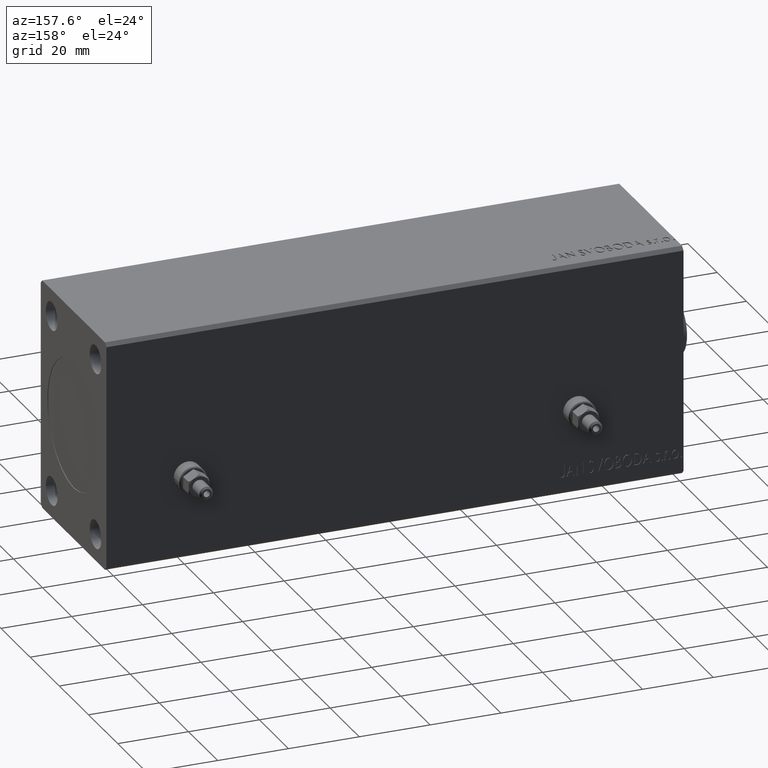
[diagram: clean part render]
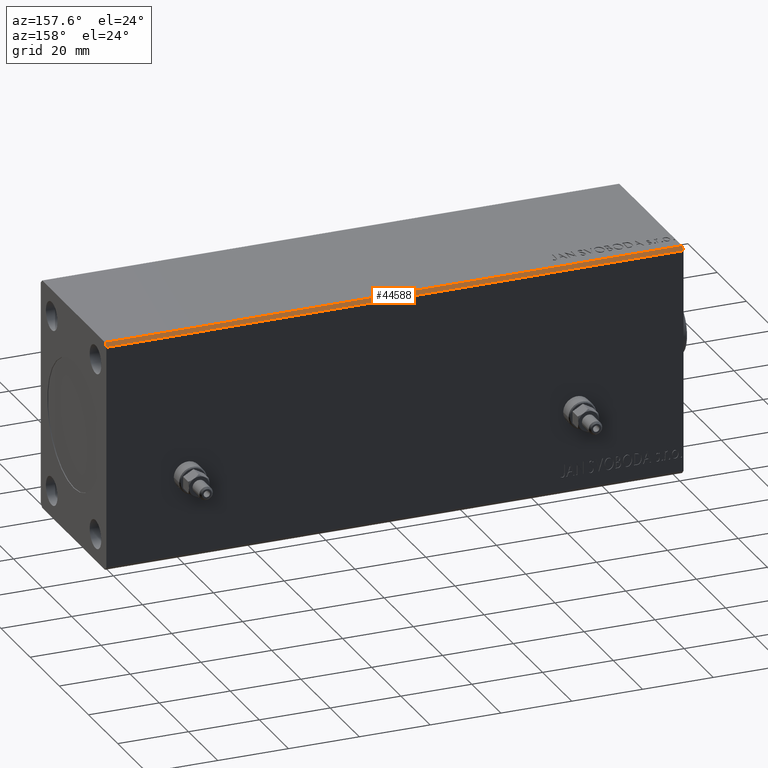
[diagram: same view with one face highlighted and labeled with its STEP entity id]
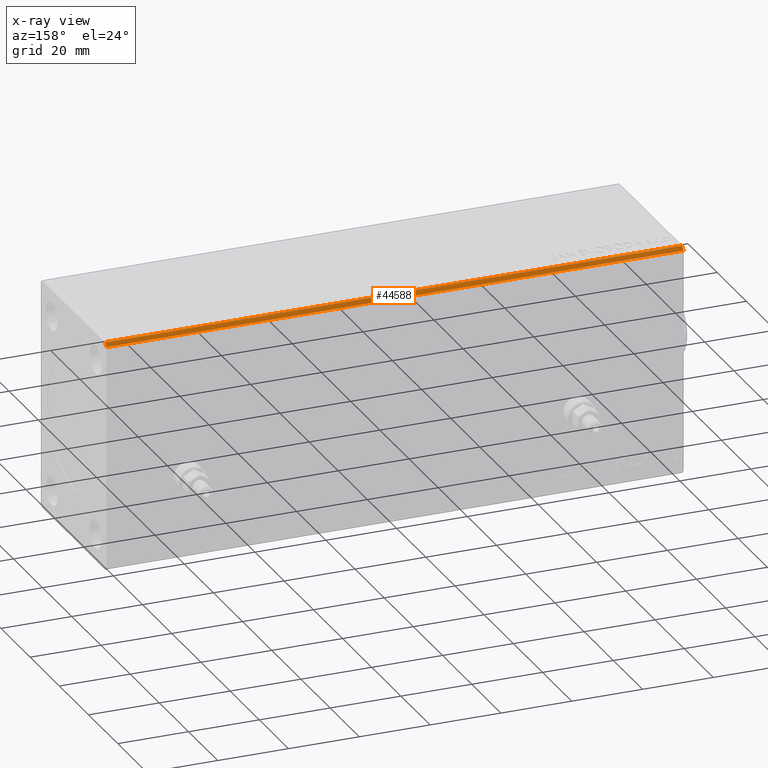
[diagram: x-ray of the same camera — body ghosted, the highlighted face saturated]
A machine part, auxiliary view. The second image highlights one B-rep face of the part: STEP entity #44588.
The next image is the same camera in x-ray: the body ghosted, the highlighted face saturated — about 0% of this face is hidden behind the body in this view.
In plain terms, the highlighted planar face has unit normal (0, -0.7071, -0.7071).
Its self-contained STEP definition (entity closure, byte-faithful):
#1428 = VERTEX_POINT ( 'NONE', #3335 ) ;
#2435 = VECTOR ( 'NONE', #40784, 1000.000000000000114 ) ;
#2694 = CARTESIAN_POINT ( 'NONE',  ( 163.0000000000000000, 22.49999999999999645, 31.50000000000000000 ) ) ;
#3335 = CARTESIAN_POINT ( 'NONE',  ( 0.000000000000000000, 22.49999999999999645, 31.50000000000000000 ) ) ;
#9043 = VECTOR ( 'NONE', #23847, 1000.000000000000000 ) ;
#9123 = AXIS2_PLACEMENT_3D ( 'NONE', #20090, #31705, #35344 ) ;
#10710 = EDGE_CURVE ( 'NONE', #39638, #1428, #45135, .T. ) ;
#12510 = EDGE_CURVE ( 'NONE', #1428, #33391, #26731, .T. ) ;
#12578 = ORIENTED_EDGE ( 'NONE', *, *, #10710, .T. ) ;
#13697 = EDGE_LOOP ( 'NONE', ( #23898, #20602, #22994, #12578 ) ) ;
#13994 = CARTESIAN_POINT ( 'NONE',  ( 163.0000000000000000, 22.49999999999999645, 31.50000000000000000 ) ) ;
#18245 = CARTESIAN_POINT ( 'NONE',  ( 0.000000000000000000, 21.49999999999999645, 32.50000000000000000 ) ) ;
#19869 = CARTESIAN_POINT ( 'NONE',  ( 0.000000000000000000, 22.49999999999999645, 31.50000000000000000 ) ) ;
#20090 = CARTESIAN_POINT ( 'NONE',  ( 163.0000000000000000, 22.49999999999999645, 31.50000000000000000 ) ) ;
#20098 = DIRECTION ( 'NONE',  ( 0.000000000000000000, -0.7071067811865474617, 0.7071067811865474617 ) ) ;
#20602 = ORIENTED_EDGE ( 'NONE', *, *, #23102, .F. ) ;
#22994 = ORIENTED_EDGE ( 'NONE', *, *, #41530, .F. ) ;
#23102 = EDGE_CURVE ( 'NONE', #30138, #33391, #35017, .T. ) ;
#23460 = VECTOR ( 'NONE', #24348, 1000.000000000000000 ) ;
#23509 = PLANE ( 'NONE',  #9123 ) ;
#23847 = DIRECTION ( 'NONE',  ( -1.000000000000000000, -0.000000000000000000, -0.000000000000000000 ) ) ;
#23898 = ORIENTED_EDGE ( 'NONE', *, *, #12510, .T. ) ;
#24348 = DIRECTION ( 'NONE',  ( -1.000000000000000000, -0.000000000000000000, -0.000000000000000000 ) ) ;
#26731 = LINE ( 'NONE', #19869, #32955 ) ;
#30138 = VERTEX_POINT ( 'NONE', #31725 ) ;
#31705 = DIRECTION ( 'NONE',  ( 0.000000000000000000, -0.7071067811865475727, -0.7071067811865475727 ) ) ;
#31725 = CARTESIAN_POINT ( 'NONE',  ( 163.0000000000000000, 21.49999999999999645, 32.50000000000000000 ) ) ;
#32955 = VECTOR ( 'NONE', #20098, 1000.000000000000114 ) ;
#33391 = VERTEX_POINT ( 'NONE', #18245 ) ;
#33806 = FACE_OUTER_BOUND ( 'NONE', #13697, .T. ) ;
#35017 = LINE ( 'NONE', #41204, #9043 ) ;
#35344 = DIRECTION ( 'NONE',  ( 0.000000000000000000, 0.7071067811865474617, -0.7071067811865474617 ) ) ;
#39638 = VERTEX_POINT ( 'NONE', #2694 ) ;
#40784 = DIRECTION ( 'NONE',  ( 0.000000000000000000, -0.7071067811865474617, 0.7071067811865474617 ) ) ;
#41204 = CARTESIAN_POINT ( 'NONE',  ( 163.0000000000000000, 21.49999999999999645, 32.50000000000000000 ) ) ;
#41530 = EDGE_CURVE ( 'NONE', #39638, #30138, #44669, .T. ) ;
#42361 = CARTESIAN_POINT ( 'NONE',  ( 163.0000000000000000, 22.49999999999999645, 31.50000000000000000 ) ) ;
#44588 = ADVANCED_FACE ( 'NONE', ( #33806 ), #23509, .F. ) ;
#44669 = LINE ( 'NONE', #13994, #2435 ) ;
#45135 = LINE ( 'NONE', #42361, #23460 ) ;